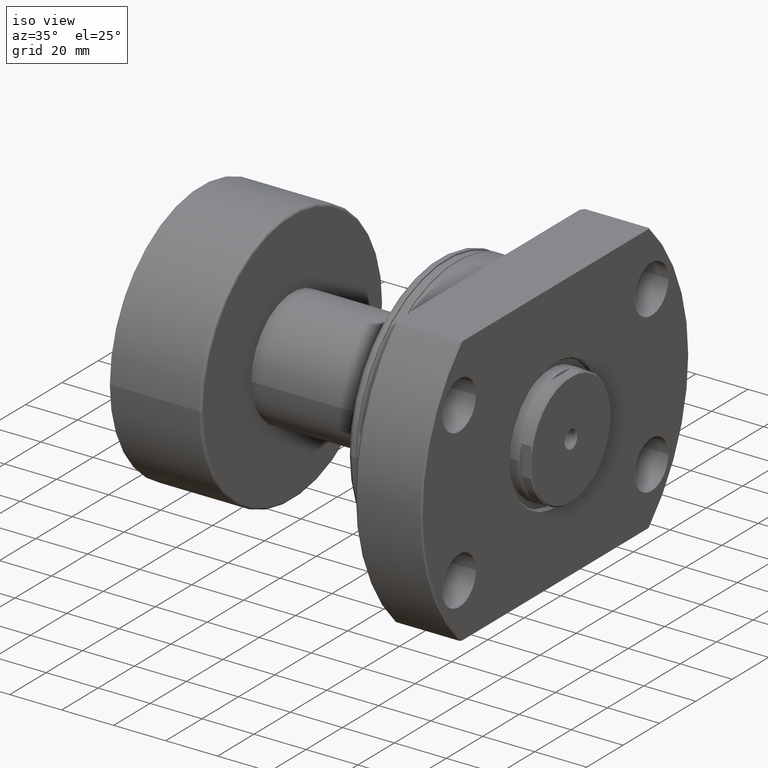
[diagram: clean part render]
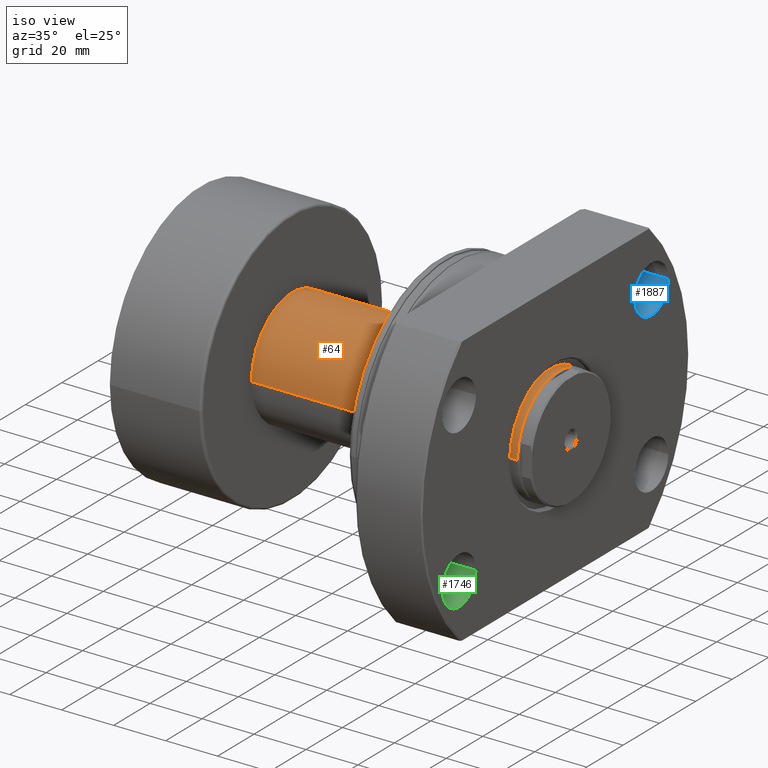
[diagram: same view with three faces highlighted in distinct colors, each labeled with its STEP entity id]
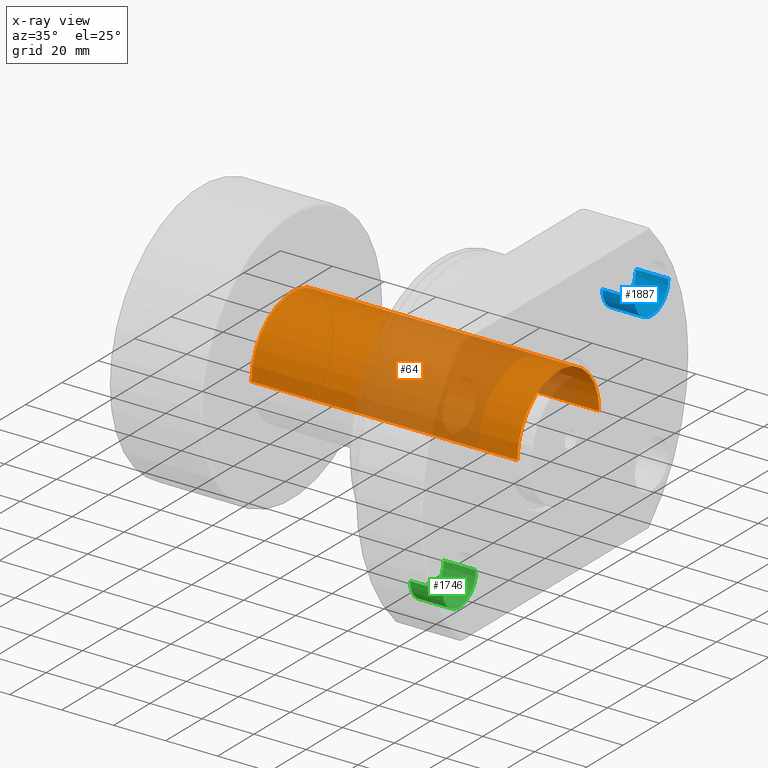
[diagram: x-ray of the same camera — body ghosted, the three highlighted faces saturated]
A machine part, iso view with three faces highlighted in distinct colors.
The next image is the same camera in x-ray (body ghosted, the three faces saturated) — at least one of them is partly hidden behind the body in this view.
Their STEP definitions:

[orange] entity #64 — the highlighted cylindrical surface (partial cylindrical patch) has radius 22.5 mm, axis along (-1, -0, -0).
#47 = CARTESIAN_POINT ( 'NONE',  ( 139.0667575123237896, 22.50000000000018829, 2.755455298081568049E-15 ) ) ;
#64 = ADVANCED_FACE ( 'NONE', ( #2736 ), #1535, .T. ) ;
#98 = AXIS2_PLACEMENT_3D ( 'NONE', #1085, #2076, #842 ) ;
#160 = VECTOR ( 'NONE', #2692, 1000.000000000000000 ) ;
#423 = ORIENTED_EDGE ( 'NONE', *, *, #1136, .F. ) ;
#692 = DIRECTION ( 'NONE',  ( 0.000000000000000000, -1.000000000000000000, 0.000000000000000000 ) ) ;
#702 = EDGE_CURVE ( 'NONE', #997, #2015, #2878, .T. ) ;
#842 = DIRECTION ( 'NONE',  ( 0.000000000000000000, -1.000000000000000000, 0.000000000000000000 ) ) ;
#946 = VERTEX_POINT ( 'NONE', #2980 ) ;
#997 = VERTEX_POINT ( 'NONE', #47 ) ;
#1051 = DIRECTION ( 'NONE',  ( -1.000000000000000000, -1.069542322069065801E-17, -0.000000000000000000 ) ) ;
#1073 = CIRCLE ( 'NONE', #2583, 22.50000000000019185 ) ;
#1085 = CARTESIAN_POINT ( 'NONE',  ( 36.70000000000000284, 3.925220321993471577E-16, 0.000000000000000000 ) ) ;
#1136 = EDGE_CURVE ( 'NONE', #2912, #2015, #1273, .T. ) ;
#1257 = CARTESIAN_POINT ( 'NONE',  ( 0.000000000000000000, 0.000000000000000000, 0.000000000000000000 ) ) ;
#1273 = CIRCLE ( 'NONE', #98, 22.50000000000000000 ) ;
#1296 = DIRECTION ( 'NONE',  ( 1.069542322069065955E-17, -1.000000000000000000, 0.000000000000000000 ) ) ;
#1433 = DIRECTION ( 'NONE',  ( -1.000000000000000000, -1.069542322069065801E-17, -0.000000000000000000 ) ) ;
#1468 = ORIENTED_EDGE ( 'NONE', *, *, #1929, .F. ) ;
#1476 = VECTOR ( 'NONE', #2627, 1000.000000000000000 ) ;
#1535 = CYLINDRICAL_SURFACE ( 'NONE', #2954, 22.50000000000009592 ) ;
#1929 = EDGE_CURVE ( 'NONE', #946, #2912, #2310, .T. ) ;
#1936 = CARTESIAN_POINT ( 'NONE',  ( 36.70000000000000284, 22.50000000000000000, 2.755455298081550694E-15 ) ) ;
#2015 = VERTEX_POINT ( 'NONE', #1936 ) ;
#2064 = CARTESIAN_POINT ( 'NONE',  ( 2.406470224655408490E-16, -22.50000000000009592, 0.000000000000000000 ) ) ;
#2076 = DIRECTION ( 'NONE',  ( -1.000000000000000000, -1.069542322069065801E-17, -0.000000000000000000 ) ) ;
#2101 = EDGE_LOOP ( 'NONE', ( #2514, #2454, #423, #1468 ) ) ;
#2310 = LINE ( 'NONE', #2064, #160 ) ;
#2454 = ORIENTED_EDGE ( 'NONE', *, *, #702, .T. ) ;
#2514 = ORIENTED_EDGE ( 'NONE', *, *, #2597, .T. ) ;
#2575 = CARTESIAN_POINT ( 'NONE',  ( 36.70000000000000284, -22.50000000000000000, 0.000000000000000000 ) ) ;
#2583 = AXIS2_PLACEMENT_3D ( 'NONE', #2668, #1433, #692 ) ;
#2597 = EDGE_CURVE ( 'NONE', #946, #997, #1073, .T. ) ;
#2627 = DIRECTION ( 'NONE',  ( -1.000000000000000000, -1.069542322069065801E-17, -0.000000000000000000 ) ) ;
#2668 = CARTESIAN_POINT ( 'NONE',  ( 139.0667575123237896, 1.487377827523464785E-15, 0.000000000000000000 ) ) ;
#2692 = DIRECTION ( 'NONE',  ( -1.000000000000000000, -1.069542322069065801E-17, -0.000000000000000000 ) ) ;
#2736 = FACE_OUTER_BOUND ( 'NONE', #2101, .T. ) ;
#2878 = LINE ( 'NONE', #2894, #1476 ) ;
#2894 = CARTESIAN_POINT ( 'NONE',  ( -2.406470224655408490E-16, 22.50000000000009592, 2.755455298081556216E-15 ) ) ;
#2912 = VERTEX_POINT ( 'NONE', #2575 ) ;
#2954 = AXIS2_PLACEMENT_3D ( 'NONE', #1257, #1051, #1296 ) ;
#2980 = CARTESIAN_POINT ( 'NONE',  ( 139.0667575123237896, -22.50000000000019185, 0.000000000000000000 ) ) ;

[blue] entity #1887 — the highlighted cylindrical surface (edge-blend (fillet) strip) has radius 9.25 mm, axis along (1, -0, 0).
#45 = VERTEX_POINT ( 'NONE', #2221 ) ;
#78 = DIRECTION ( 'NONE',  ( 2.850572630794320387E-14, 1.000000000000000000, 0.000000000000000000 ) ) ;
#206 = DIRECTION ( 'NONE',  ( 1.000000000000000000, -2.886466111666351885E-14, -0.000000000000000000 ) ) ;
#264 = AXIS2_PLACEMENT_3D ( 'NONE', #1844, #1291, #621 ) ;
#439 = LINE ( 'NONE', #1675, #2742 ) ;
#578 = CARTESIAN_POINT ( 'NONE',  ( 32.00000000000125056, 43.59999999999907772, 30.50000000000000000 ) ) ;
#602 = ORIENTED_EDGE ( 'NONE', *, *, #2177, .F. ) ;
#621 = DIRECTION ( 'NONE',  ( 2.850572630794320387E-14, 1.000000000000000000, 0.000000000000000000 ) ) ;
#628 = VERTEX_POINT ( 'NONE', #1818 ) ;
#651 = CARTESIAN_POINT ( 'NONE',  ( 32.00000000000151346, 52.84999999999907772, 30.50000000000000000 ) ) ;
#696 = ORIENTED_EDGE ( 'NONE', *, *, #2280, .F. ) ;
#1279 = CIRCLE ( 'NONE', #3128, 9.250000000000001776 ) ;
#1291 = DIRECTION ( 'NONE',  ( 1.000000000000000000, -2.886466111666351885E-14, -0.000000000000000000 ) ) ;
#1324 = AXIS2_PLACEMENT_3D ( 'NONE', #651, #2154, #3162 ) ;
#1356 = LINE ( 'NONE', #578, #1689 ) ;
#1449 = EDGE_CURVE ( 'NONE', #2397, #628, #1356, .T. ) ;
#1557 = CARTESIAN_POINT ( 'NONE',  ( 44.50000000000152056, 52.84999999999871534, 30.50000000000000000 ) ) ;
#1569 = DIRECTION ( 'NONE',  ( 1.000000000000000000, -2.886466111666351885E-14, 0.000000000000000000 ) ) ;
#1624 = EDGE_LOOP ( 'NONE', ( #602, #3138, #2593, #696 ) ) ;
#1652 = CARTESIAN_POINT ( 'NONE',  ( 32.00000000000177636, 62.09999999999907772, 30.50000000000000000 ) ) ;
#1675 = CARTESIAN_POINT ( 'NONE',  ( 32.00000000000177636, 62.09999999999907772, 30.50000000000000000 ) ) ;
#1689 = VECTOR ( 'NONE', #3095, 1000.000000000000000 ) ;
#1702 = VERTEX_POINT ( 'NONE', #1652 ) ;
#1797 = CIRCLE ( 'NONE', #1324, 9.250000000000001776 ) ;
#1818 = CARTESIAN_POINT ( 'NONE',  ( 44.50000000000125056, 43.59999999999871534, 30.50000000000000000 ) ) ;
#1844 = CARTESIAN_POINT ( 'NONE',  ( 32.00000000000151346, 52.84999999999907772, 30.50000000000000000 ) ) ;
#1887 = ADVANCED_FACE ( 'NONE', ( #2084 ), #2823, .F. ) ;
#1907 = EDGE_CURVE ( 'NONE', #628, #45, #1279, .T. ) ;
#2084 = FACE_OUTER_BOUND ( 'NONE', #1624, .T. ) ;
#2154 = DIRECTION ( 'NONE',  ( 1.000000000000000000, -2.886466111666351885E-14, 0.000000000000000000 ) ) ;
#2177 = EDGE_CURVE ( 'NONE', #2397, #1702, #1797, .T. ) ;
#2221 = CARTESIAN_POINT ( 'NONE',  ( 44.50000000000178346, 62.09999999999871534, 30.50000000000000000 ) ) ;
#2280 = EDGE_CURVE ( 'NONE', #1702, #45, #439, .T. ) ;
#2305 = CARTESIAN_POINT ( 'NONE',  ( 32.00000000000125056, 43.59999999999907772, 30.50000000000000000 ) ) ;
#2397 = VERTEX_POINT ( 'NONE', #2305 ) ;
#2593 = ORIENTED_EDGE ( 'NONE', *, *, #1907, .T. ) ;
#2742 = VECTOR ( 'NONE', #206, 1000.000000000000000 ) ;
#2823 = CYLINDRICAL_SURFACE ( 'NONE', #264, 9.250000000000001776 ) ;
#3095 = DIRECTION ( 'NONE',  ( 1.000000000000000000, -2.886466111666351885E-14, -0.000000000000000000 ) ) ;
#3128 = AXIS2_PLACEMENT_3D ( 'NONE', #1557, #1569, #78 ) ;
#3138 = ORIENTED_EDGE ( 'NONE', *, *, #1449, .T. ) ;
#3162 = DIRECTION ( 'NONE',  ( 2.850572630794320387E-14, 1.000000000000000000, 0.000000000000000000 ) ) ;

[green] entity #1746 — the highlighted cylindrical surface (edge-blend (fillet) strip) has radius 9.25 mm, axis along (1, -0, 0).
#12 = AXIS2_PLACEMENT_3D ( 'NONE', #2227, #2744, #2726 ) ;
#54 = AXIS2_PLACEMENT_3D ( 'NONE', #2457, #2970, #2387 ) ;
#122 = DIRECTION ( 'NONE',  ( 1.000000000000000000, -2.888547605177540648E-14, 0.000000000000000000 ) ) ;
#177 = EDGE_CURVE ( 'NONE', #982, #1901, #886, .T. ) ;
#283 = EDGE_LOOP ( 'NONE', ( #2239, #2693, #2373, #1137 ) ) ;
#353 = AXIS2_PLACEMENT_3D ( 'NONE', #1856, #122, #1100 ) ;
#575 = CARTESIAN_POINT ( 'NONE',  ( 44.49999999999873523, -43.60000000000128040, -30.50000000000000000 ) ) ;
#860 = CARTESIAN_POINT ( 'NONE',  ( 31.99999999999872458, -43.60000000000092513, -30.50000000000000000 ) ) ;
#861 = VECTOR ( 'NONE', #1331, 1000.000000000000000 ) ;
#886 = LINE ( 'NONE', #860, #861 ) ;
#899 = VERTEX_POINT ( 'NONE', #2680 ) ;
#927 = CIRCLE ( 'NONE', #353, 9.250000000000001776 ) ;
#982 = VERTEX_POINT ( 'NONE', #1728 ) ;
#1010 = VERTEX_POINT ( 'NONE', #1101 ) ;
#1100 = DIRECTION ( 'NONE',  ( 2.925587700025750053E-14, 1.000000000000000000, 0.000000000000000000 ) ) ;
#1101 = CARTESIAN_POINT ( 'NONE',  ( 31.99999999999818812, -62.10000000000092513, -30.50000000000000000 ) ) ;
#1137 = ORIENTED_EDGE ( 'NONE', *, *, #177, .F. ) ;
#1319 = EDGE_CURVE ( 'NONE', #899, #1901, #927, .T. ) ;
#1331 = DIRECTION ( 'NONE',  ( 1.000000000000000000, -2.886466111666351885E-14, -0.000000000000000000 ) ) ;
#1466 = DIRECTION ( 'NONE',  ( 1.000000000000000000, -2.886466111666351885E-14, -0.000000000000000000 ) ) ;
#1646 = EDGE_CURVE ( 'NONE', #1010, #982, #2441, .T. ) ;
#1728 = CARTESIAN_POINT ( 'NONE',  ( 31.99999999999873168, -43.60000000000092513, -30.50000000000000000 ) ) ;
#1746 = ADVANCED_FACE ( 'NONE', ( #1999 ), #2288, .F. ) ;
#1856 = CARTESIAN_POINT ( 'NONE',  ( 44.49999999999846523, -52.85000000000128750, -30.50000000000000000 ) ) ;
#1901 = VERTEX_POINT ( 'NONE', #575 ) ;
#1999 = FACE_OUTER_BOUND ( 'NONE', #283, .T. ) ;
#2227 = CARTESIAN_POINT ( 'NONE',  ( 31.99999999999846167, -52.85000000000092513, -30.50000000000000000 ) ) ;
#2239 = ORIENTED_EDGE ( 'NONE', *, *, #1646, .F. ) ;
#2288 = CYLINDRICAL_SURFACE ( 'NONE', #12, 9.250000000000001776 ) ;
#2373 = ORIENTED_EDGE ( 'NONE', *, *, #1319, .T. ) ;
#2387 = DIRECTION ( 'NONE',  ( 2.925587700025750053E-14, 1.000000000000000000, 0.000000000000000000 ) ) ;
#2441 = CIRCLE ( 'NONE', #54, 9.250000000000001776 ) ;
#2457 = CARTESIAN_POINT ( 'NONE',  ( 31.99999999999846167, -52.85000000000092513, -30.50000000000000000 ) ) ;
#2680 = CARTESIAN_POINT ( 'NONE',  ( 44.49999999999819522, -62.10000000000128750, -30.50000000000000000 ) ) ;
#2693 = ORIENTED_EDGE ( 'NONE', *, *, #3083, .T. ) ;
#2726 = DIRECTION ( 'NONE',  ( 2.850572630794320387E-14, 1.000000000000000000, 0.000000000000000000 ) ) ;
#2744 = DIRECTION ( 'NONE',  ( 1.000000000000000000, -2.886466111666351885E-14, -0.000000000000000000 ) ) ;
#2961 = CARTESIAN_POINT ( 'NONE',  ( 31.99999999999819522, -62.10000000000092513, -30.50000000000000000 ) ) ;
#2970 = DIRECTION ( 'NONE',  ( 1.000000000000000000, -2.888547605177540648E-14, 0.000000000000000000 ) ) ;
#3023 = LINE ( 'NONE', #2961, #3066 ) ;
#3066 = VECTOR ( 'NONE', #1466, 1000.000000000000000 ) ;
#3083 = EDGE_CURVE ( 'NONE', #1010, #899, #3023, .T. ) ;